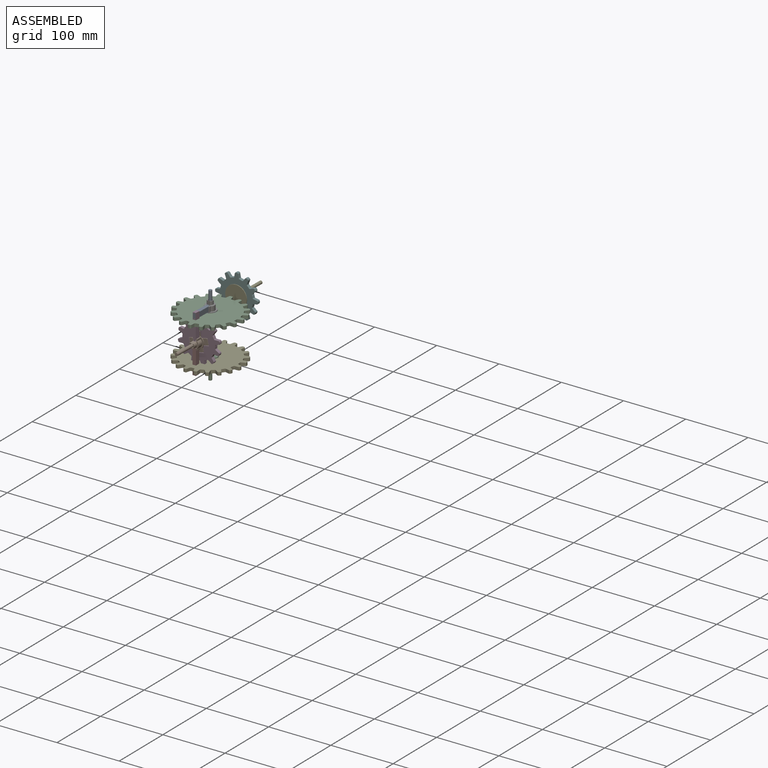
[diagram: assembled view]
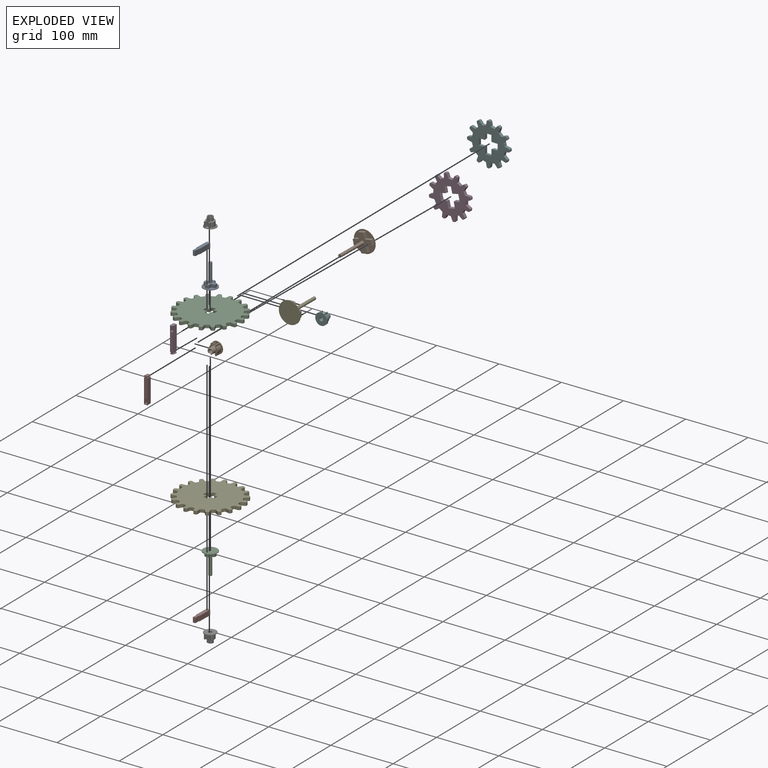
[diagram: exploded view]
GUIDED TOUR — MATED ASSEMBLY (Onshape document ef7a5acd05406b208c71d4bb, AutoMate assembly ef7a5acd05406b208c71d4bb_c376471674a683f2a3c6f9dc_a261df953283f007be04f76c_default)

This assembly has 16 components, labeled P0..P15 below (a component is one placed occurrence of a part; the same part can appear more than once), held together by 12 mates. A mate is a constraint between two components; its type names the relative motion it leaves free:
  FASTENED — locks the two components together rigidly (no relative motion),
  REVOLUTE — leaves rotation about the listed axis free (a hinge).
Axis/direction vectors are unit vectors and 'through' points are millimeter coordinates, both in the assembly's world frame.

MATES
  1. REVOLUTE "Main Gear 2": P12 <-> P13, axis (-0.017, -1.000, 0.000) through (-6.67, 27.48, 24.51) mm
  2. REVOLUTE "Secondary Gear 1": P6 <-> P0, axis (0.000, 0.000, -1.000) through (-9.37, -34.76, 25.52) mm
  3. FASTENED "Fastened 6": P14 <-> P7, direction (0.000, 0.000, -1.000) through (-9.46, -38.68, -47.33) mm
  4. REVOLUTE "Secondary Gear 2": P14 <-> P10, axis (0.000, 0.000, 1.000) through (-9.37, -34.76, -46.33) mm
  5. FASTENED "Fastened 2": P0 <-> P2, direction (0.000, 0.000, 1.000) through (-9.37, -34.76, 24.92) mm
  6. FASTENED "Fastened 1": P12 <-> P5, direction (0.017, 1.000, 0.000) through (-6.68, 26.48, 24.51) mm
  7. FASTENED "Fastened 5": P8 <-> P6, direction (0.000, 0.000, -1.000) through (-9.46, -38.68, 26.52) mm
  8. REVOLUTE "Main Gear 1": P9 <-> P1, axis (0.023, 1.000, 0.000) through (-9.80, -61.68, -10.41) mm
  9. FASTENED "Fastened 1": P9 <-> P11, direction (-0.023, -1.000, 0.000) through (-9.77, -60.68, -10.41) mm
  10. FASTENED "Fastened 4": P1 <-> P15, direction (-0.023, -1.000, 0.000) through (-9.82, -62.68, -14.33) mm
  11. FASTENED "Fastened 2": P10 <-> P4, direction (0.000, 0.000, -1.000) through (-9.37, -34.76, -45.73) mm
  12. FASTENED "Fastened 3": P1 <-> P3, direction (-0.023, -1.000, 0.000) through (-9.82, -62.68, -6.48) mm

ASSEMBLY ORDER
  1. P2 — the base component [order heuristic]
  2. P0 — core [order heuristic]
  3. P8 [order verified]
  4. P6 [order verified]
  5. P11 — core [order heuristic]
  6. P9 [order verified]
  7. P3 [order verified]
  8. P15 [order verified]
  9. P1 [order verified]
  10. P5 [order verified]
  11. P12 [order verified]
  12. P13 [order verified]
  13. P4 — core [order heuristic]
  14. P10 — core [order heuristic]
  15. P7 [order verified]
  16. P14 [order verified]
(P9, P15 verified with a relaxed clearance tolerance: the source model stores slight part interference there.)
Order-tag legend:
  [order verified] — this step's position reverses a verified removal order: the component was checked to insert without passing through the ones already placed.
  [order heuristic] — the first 5 components form the assembly's core: parts whose collision-free extraction could not be verified, listed in mate-graph order.

Of the 16 components, 2 carry the full construction recipe — the FeatureScript program that regenerates the part's solid from scratch; the rest are supplied as boundary geometry only.
Because this assembly has more than 12 components, the tour below covers the 12 most significant ones individually (every recipe-attached component first, then the largest by part volume), in assembly order; the remaining 4 are summarized together in a grouped section at the end.
Each toured component is shown spotlighted twice — in the assembled view, then in the exploded view, where a leader line traces a displaced component back to its assembled socket (saturated green if recipe-attached, orange if geometry-only; every other component desaturated gray) — followed by its recipe or geometry summary and the mates that hold it.
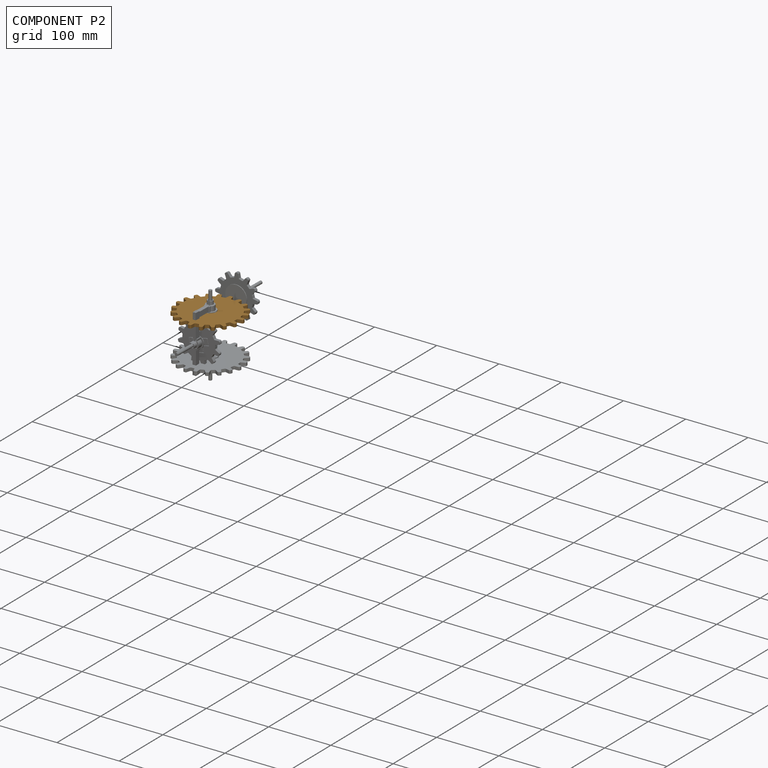
[diagram: component P2 — assembled]
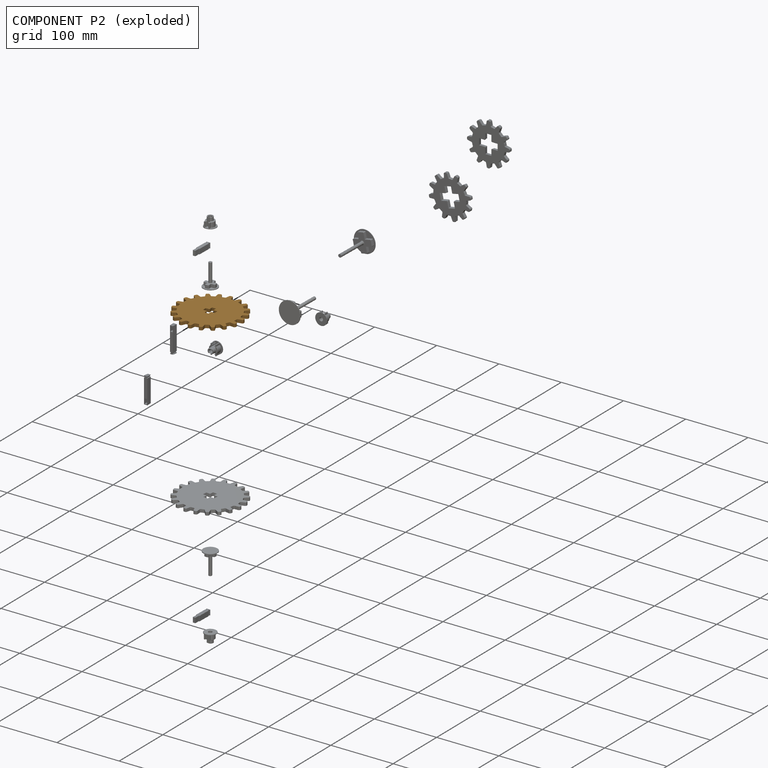
[diagram: component P2 — exploded]
COMPONENT P2 — geometry summary (no construction recipe available for this part):
  bounding box: 104.9 x 104.9 x 5.0 mm
  B-rep topology: 1 solid, 178 faces, 1056 edges
  volume: 35250 mm^3 (64% of its bounding box)
  symmetry: 2-fold rotationally symmetric about the x axis; 2-fold rotationally symmetric about the y axis; 4-fold rotationally symmetric about the z axis; mirror-symmetric across its x mid-plane, y mid-plane, z mid-plane
Held by: FASTENED mate "Fastened 2" to P0.
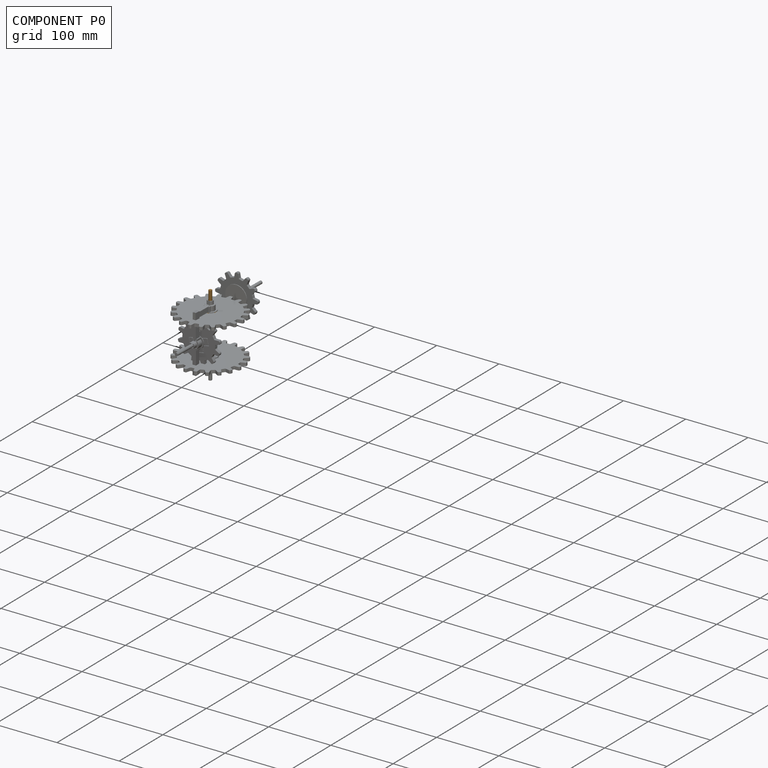
[diagram: component P0 — assembled]
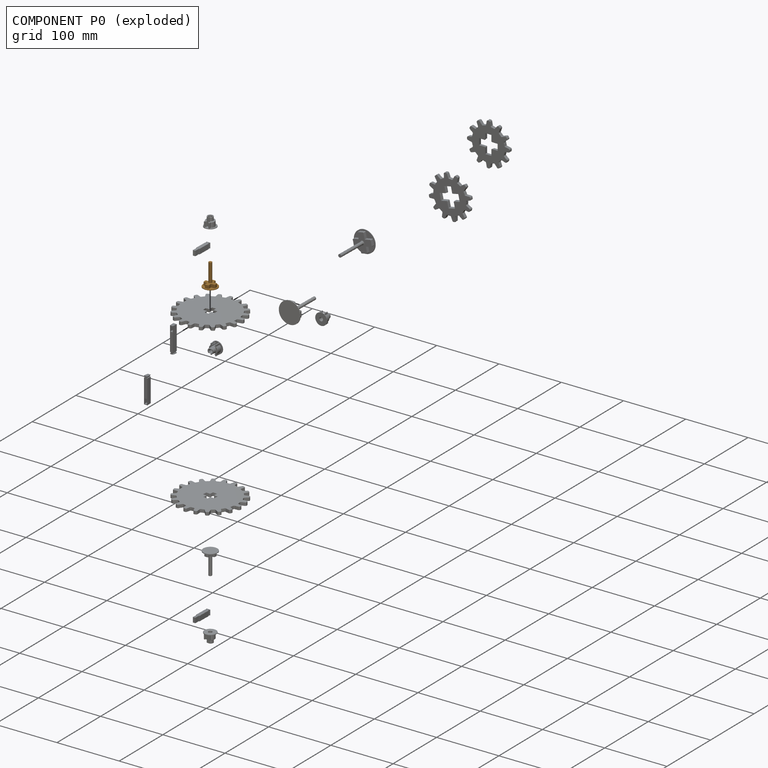
[diagram: component P0 — exploded]
COMPONENT P0 — geometry summary (no construction recipe available for this part):
  bounding box: 36.1 x 23.0 x 23.0 mm
  B-rep topology: 1 solid, 27 faces, 138 edges
  volume: 1915 mm^3 (10% of its bounding box)
  symmetry: 4-fold rotationally symmetric about the y axis; mirror-symmetric across its x mid-plane, z mid-plane
Held by: REVOLUTE mate "Secondary Gear 1" to P6; FASTENED mate "Fastened 2" to P2.
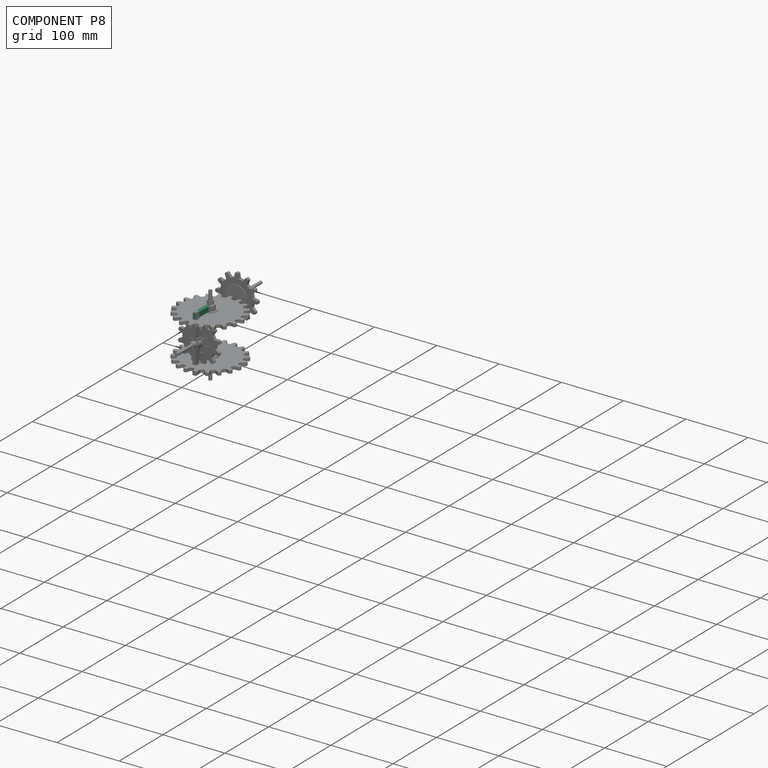
[diagram: component P8 — assembled]
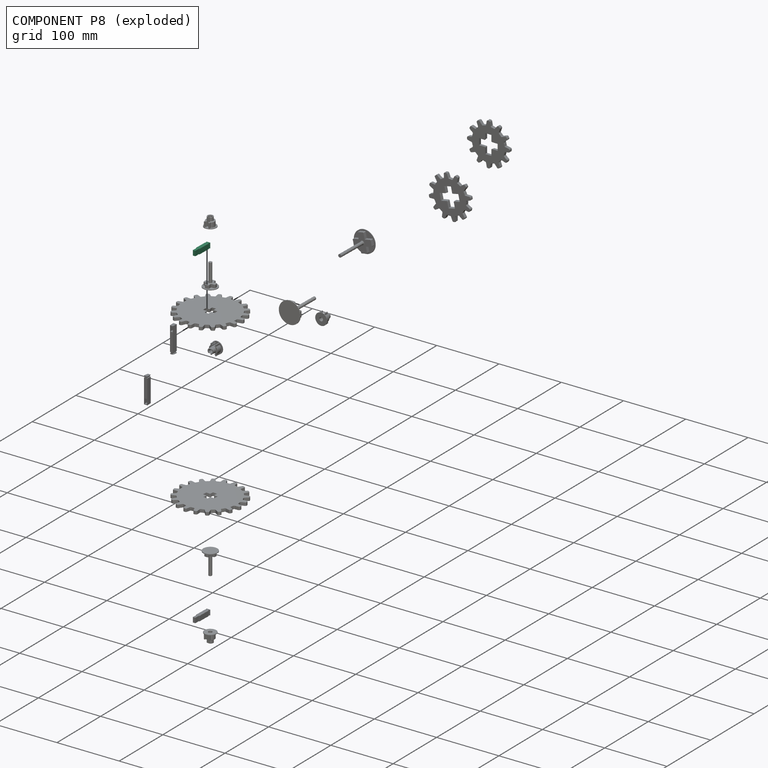
[diagram: component P8 — exploded]
COMPONENT P8 — same part as P7 (CADFS 00689722); its construction recipe is shown at P7.
Held by: FASTENED mate "Fastened 5" to P6.
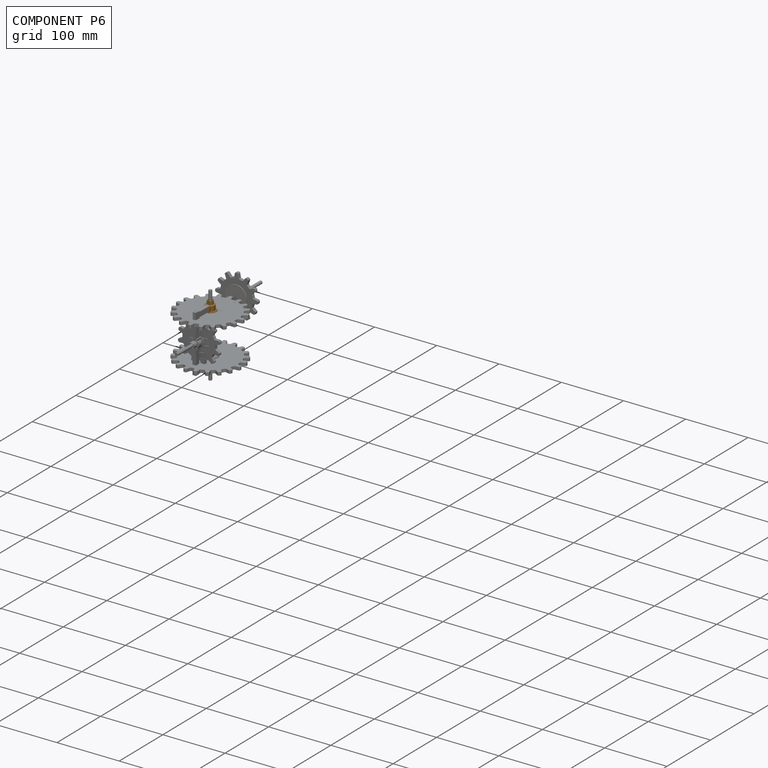
[diagram: component P6 — assembled]
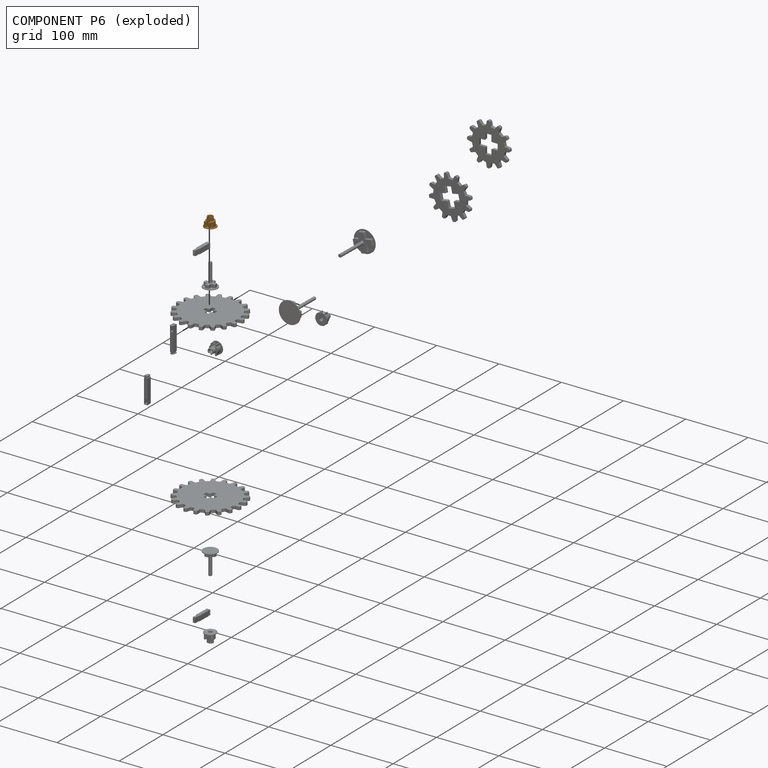
[diagram: component P6 — exploded]
COMPONENT P6 — geometry summary (no construction recipe available for this part):
  bounding box: 19.2 x 19.2 x 15.0 mm
  B-rep topology: 1 solid, 66 faces, 324 edges
  volume: 1471 mm^3 (27% of its bounding box)
  symmetry: mirror-symmetric across its y mid-plane
Held by: REVOLUTE mate "Secondary Gear 1" to P0; FASTENED mate "Fastened 5" to P8.
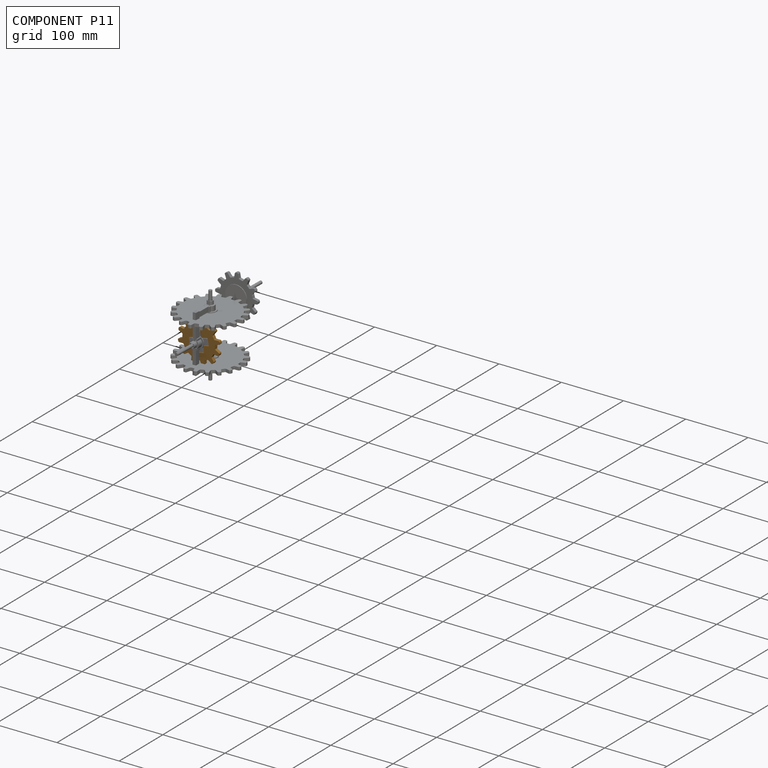
[diagram: component P11 — assembled]
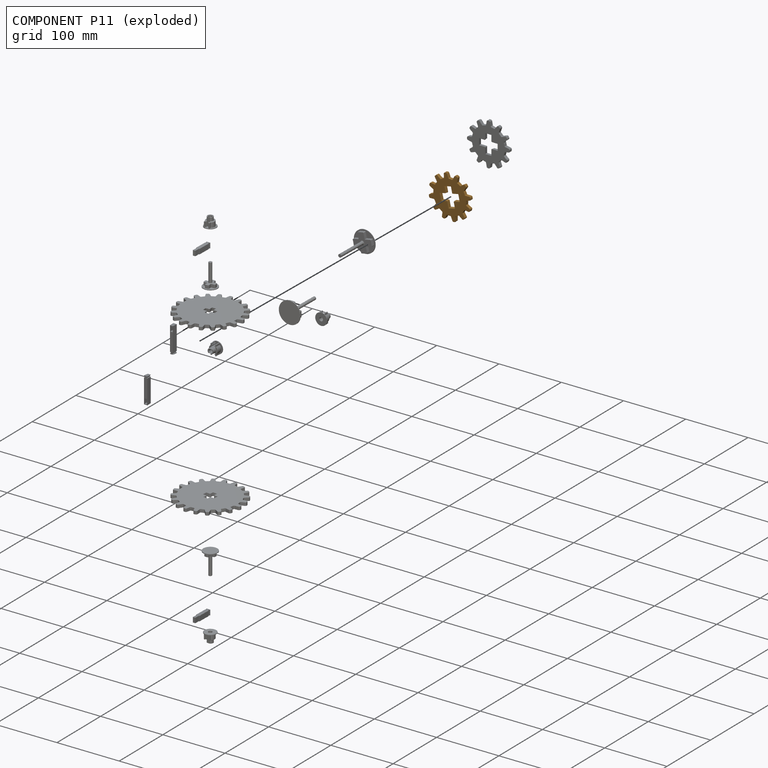
[diagram: component P11 — exploded]
COMPONENT P11 — geometry summary (no construction recipe available for this part):
  bounding box: 69.1 x 69.1 x 5.0 mm
  B-rep topology: 1 solid, 114 faces, 672 edges
  volume: 11443 mm^3 (48% of its bounding box)
  symmetry: 2-fold rotationally symmetric about the x axis; 2-fold rotationally symmetric about the y axis; 4-fold rotationally symmetric about the z axis; mirror-symmetric across its x mid-plane, y mid-plane, z mid-plane
Held by: FASTENED mate "Fastened 1" to P9.
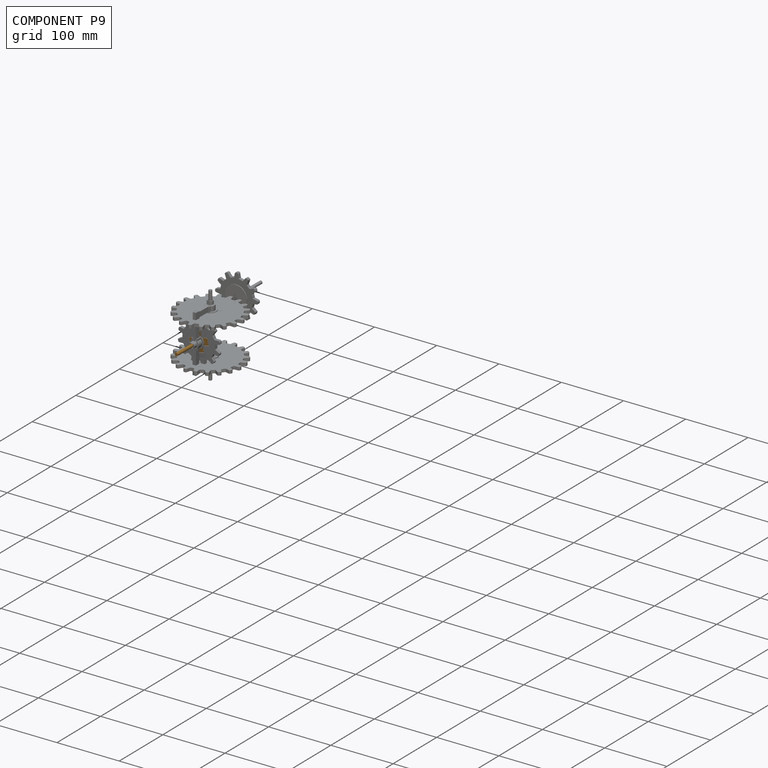
[diagram: component P9 — assembled]
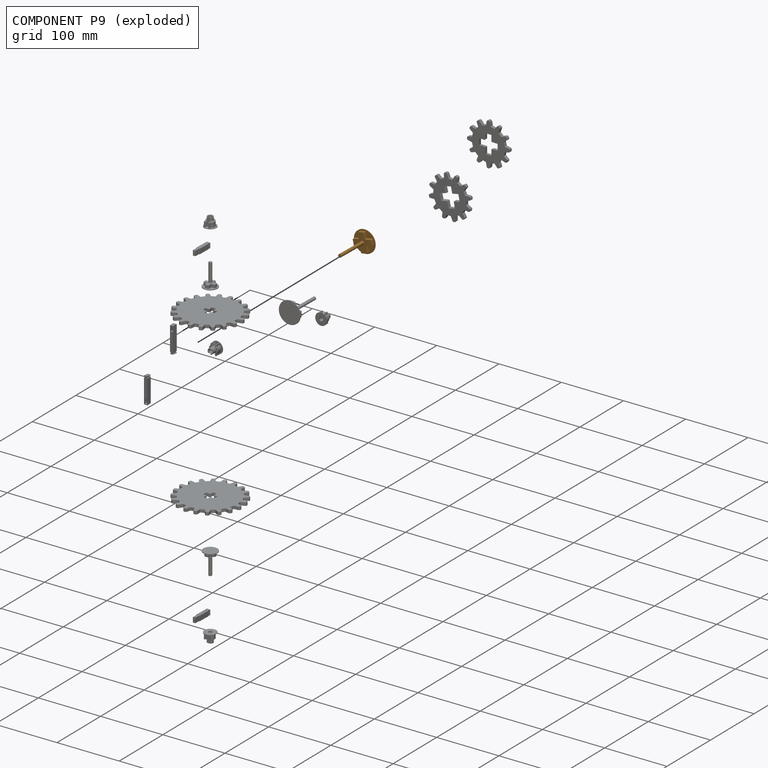
[diagram: component P9 — exploded]
COMPONENT P9 — geometry summary (no construction recipe available for this part):
  bounding box: 56.1 x 35.0 x 35.0 mm
  B-rep topology: 1 solid, 27 faces, 138 edges
  volume: 4489 mm^3 (7% of its bounding box)
  symmetry: 4-fold rotationally symmetric about the y axis; mirror-symmetric across its x mid-plane, z mid-plane
Held by: REVOLUTE mate "Main Gear 1" to P1; FASTENED mate "Fastened 1" to P11.
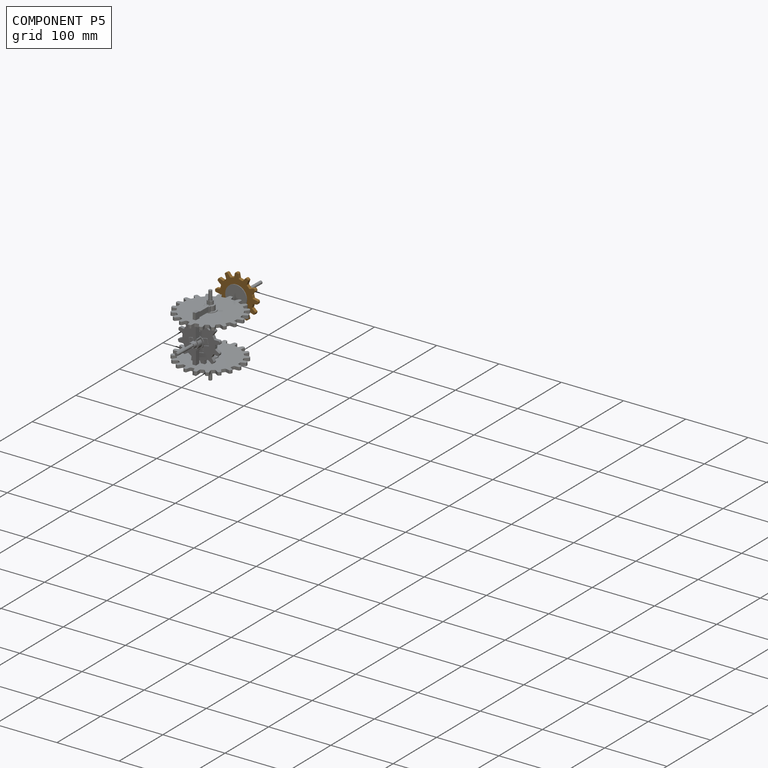
[diagram: component P5 — assembled]
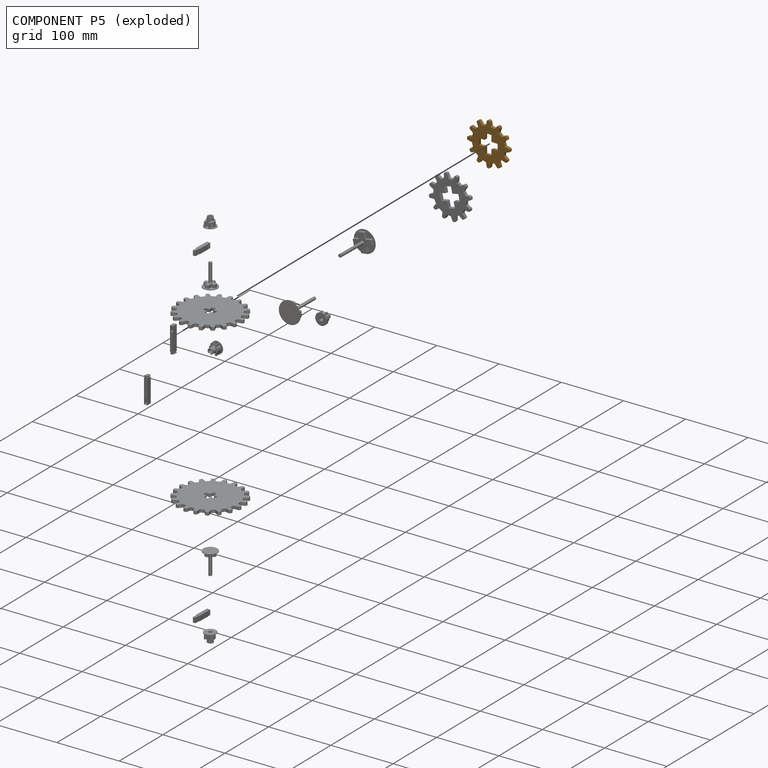
[diagram: component P5 — exploded]
COMPONENT P5 — geometry summary (no construction recipe available for this part):
  bounding box: 69.1 x 69.1 x 5.0 mm
  B-rep topology: 1 solid, 114 faces, 672 edges
  volume: 11443 mm^3 (48% of its bounding box)
  symmetry: 2-fold rotationally symmetric about the x axis; 2-fold rotationally symmetric about the y axis; 4-fold rotationally symmetric about the z axis; mirror-symmetric across its x mid-plane, y mid-plane, z mid-plane
Held by: FASTENED mate "Fastened 1" to P12.
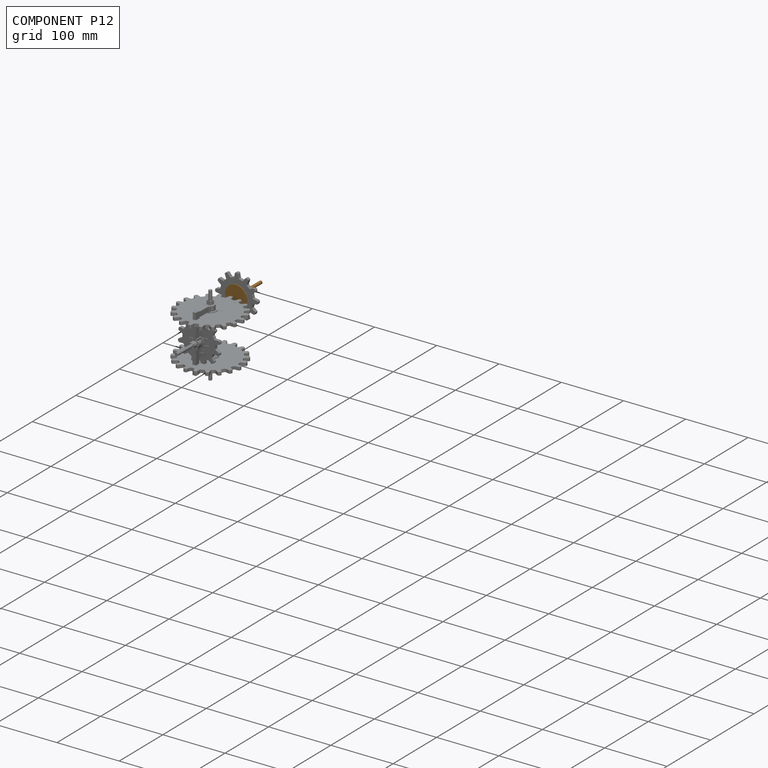
[diagram: component P12 — assembled]
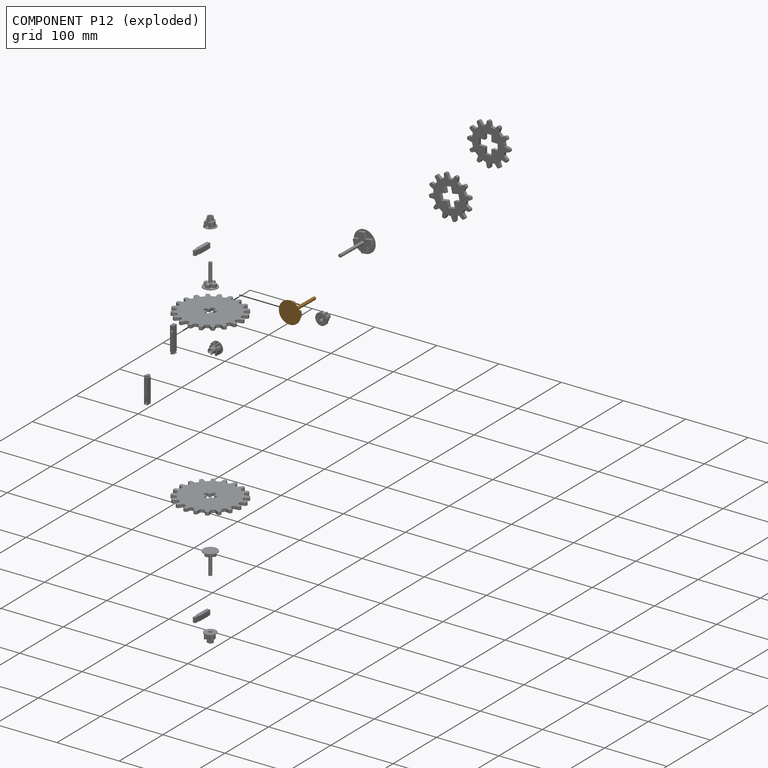
[diagram: component P12 — exploded]
COMPONENT P12 — geometry summary (no construction recipe available for this part):
  bounding box: 56.1 x 35.0 x 35.0 mm
  B-rep topology: 1 solid, 27 faces, 138 edges
  volume: 4489 mm^3 (7% of its bounding box)
  symmetry: 4-fold rotationally symmetric about the y axis; mirror-symmetric across its x mid-plane, z mid-plane
Held by: REVOLUTE mate "Main Gear 2" to P13; FASTENED mate "Fastened 1" to P5.
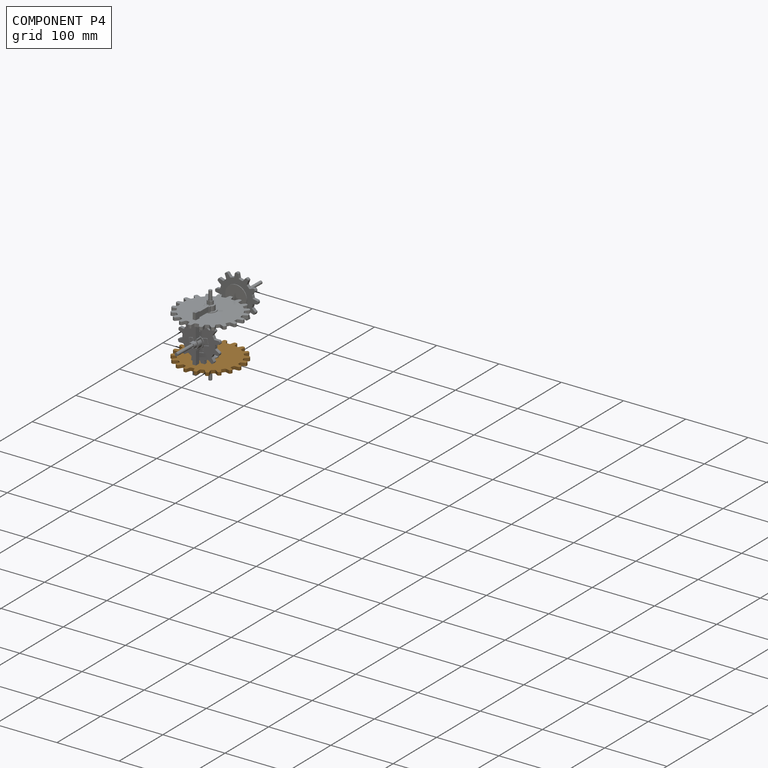
[diagram: component P4 — assembled]
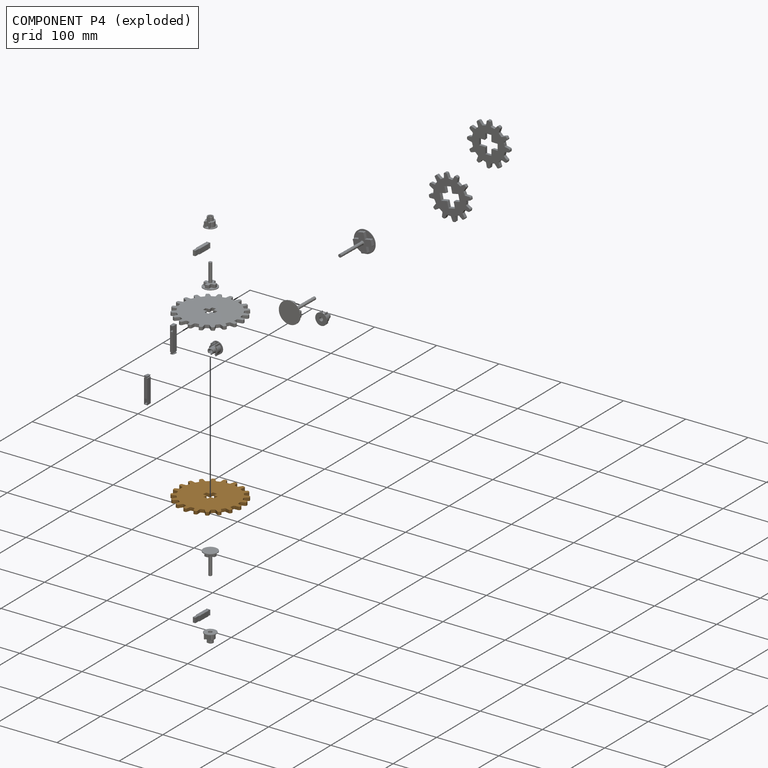
[diagram: component P4 — exploded]
COMPONENT P4 — geometry summary (no construction recipe available for this part):
  bounding box: 104.9 x 104.9 x 5.0 mm
  B-rep topology: 1 solid, 178 faces, 1056 edges
  volume: 35250 mm^3 (64% of its bounding box)
  symmetry: 2-fold rotationally symmetric about the x axis; 2-fold rotationally symmetric about the y axis; 4-fold rotationally symmetric about the z axis; mirror-symmetric across its x mid-plane, y mid-plane, z mid-plane
Held by: FASTENED mate "Fastened 2" to P10.
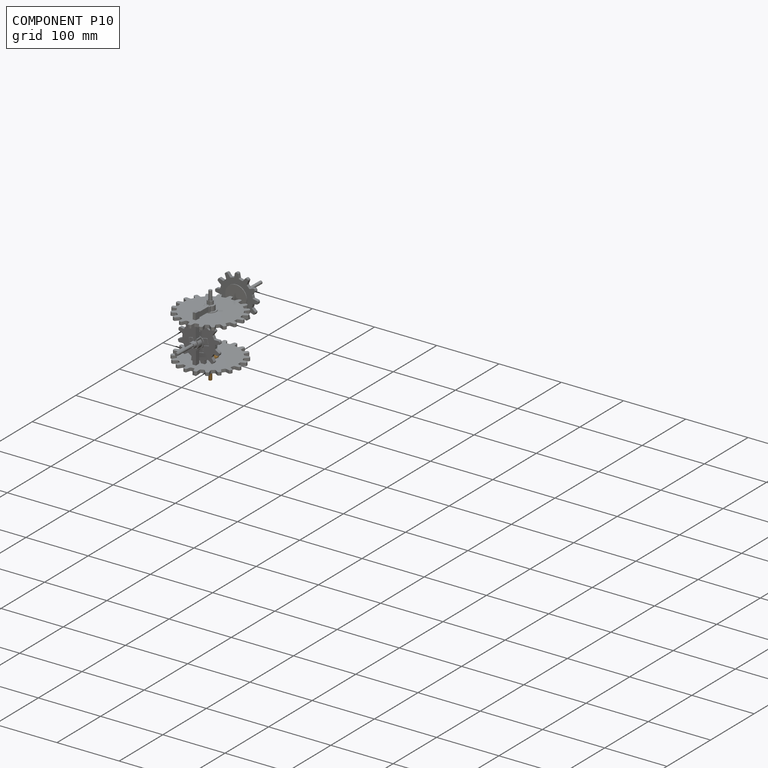
[diagram: component P10 — assembled]
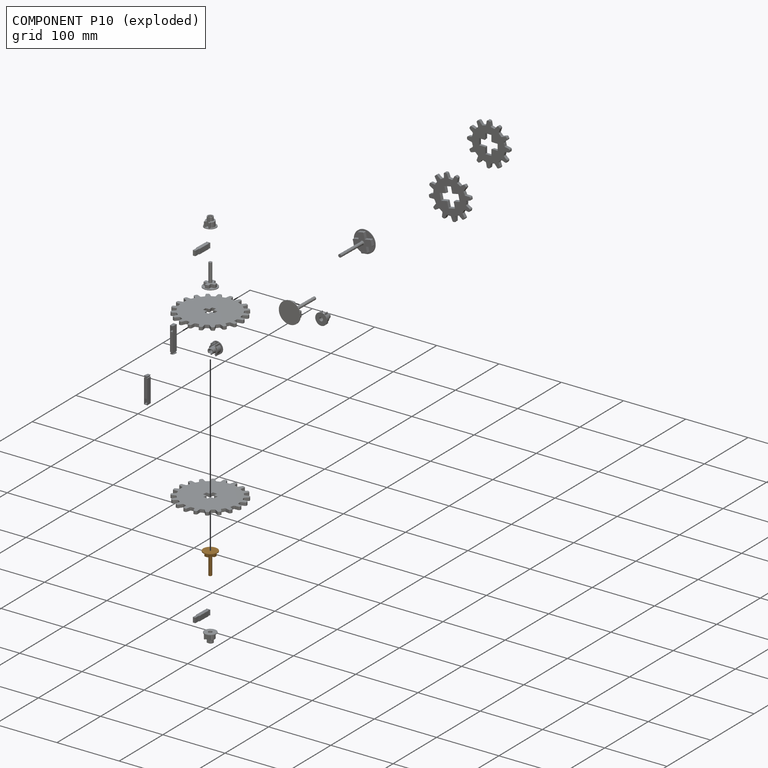
[diagram: component P10 — exploded]
COMPONENT P10 — geometry summary (no construction recipe available for this part):
  bounding box: 36.1 x 23.0 x 23.0 mm
  B-rep topology: 1 solid, 27 faces, 138 edges
  volume: 1915 mm^3 (10% of its bounding box)
  symmetry: 4-fold rotationally symmetric about the y axis; mirror-symmetric across its x mid-plane, z mid-plane
Held by: REVOLUTE mate "Secondary Gear 2" to P14; FASTENED mate "Fastened 2" to P4.
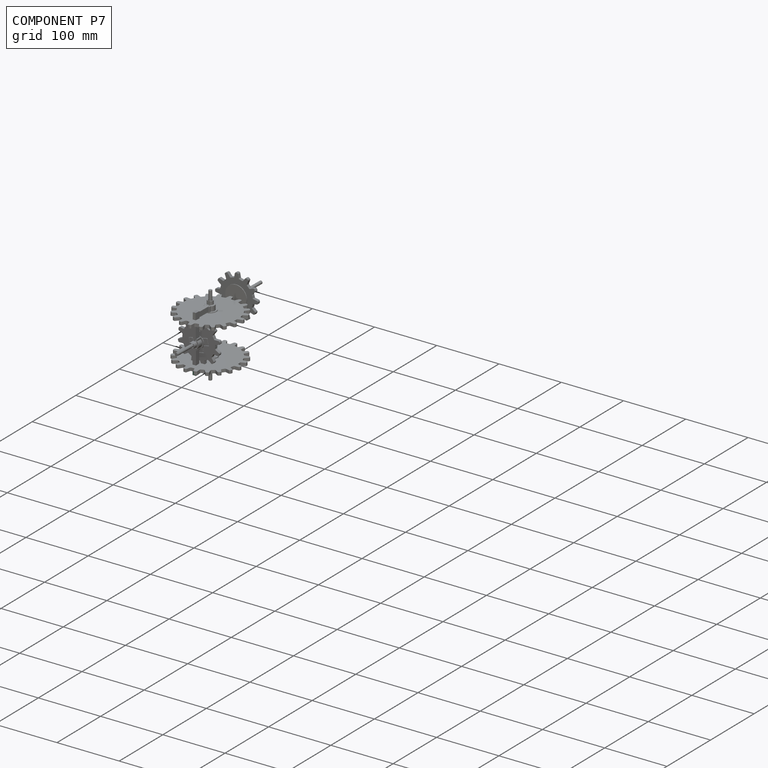
[diagram: component P7 — assembled]
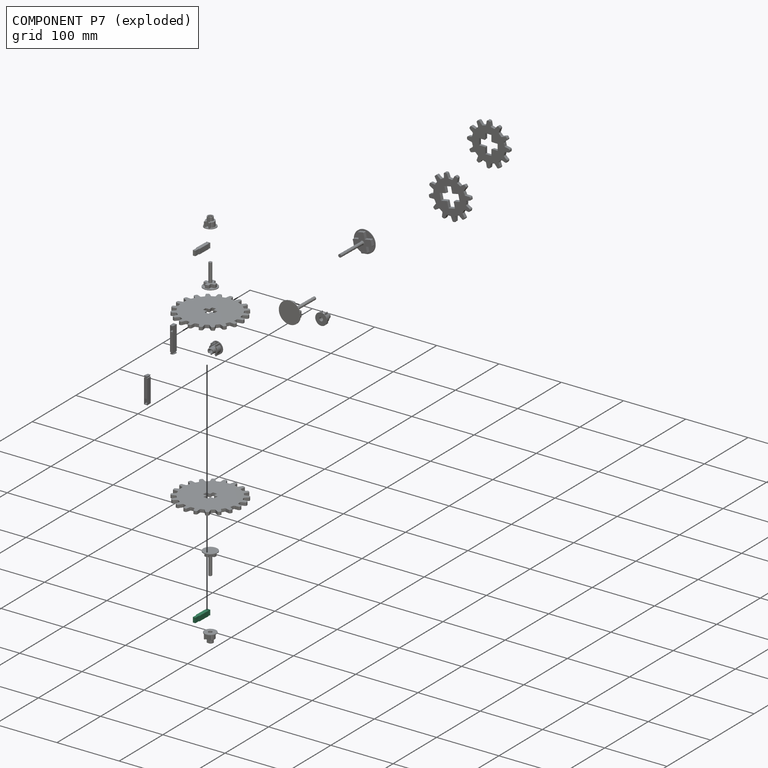
[diagram: component P7 — exploded]
COMPONENT P7 — recipe-attached (CADFS 00689722, mesh-verified: the recipe's output STEP matches this component's geometry to below the mesh-comparison resolution (tessellation chordal tolerance ~0.0502 mm)).
Held by: FASTENED mate "Fastened 6" to P14.
Construction recipe (FeatureScript — the CAD program that rebuilds this solid; sketch coordinates are in the units given by the * unit suffixes, e.g. mm):

FeatureScript 1511;
import(path : "onshape/std/geometry.fs", version : "1511.0");
import(path : "onshape/std/common.fs", version : "1511.0");
const mm = millimeter;
const VERTEX = EntityType.VERTEX;
const EDGE = EntityType.EDGE;
const FACE = EntityType.FACE;
const BODY = EntityType.BODY;
function v(x, y){return vector(x, y);}
function OD(order){return orderDisambiguation(order);}
function OSD(set){return originalSetDisambiguation(set);}
function TD(topology){return topologyDisambiguation(topology);}
function TDD(query){return trueDependencyDisambiguation(query);}
function sQuery(a, b, c) {return sketchEntityQuery(a, b, c);}

annotation { "Feature Type Name" : "Feature", "Feature Type Description" : "" }
export const myFeature = defineFeature(function(context is Context, id is Id, definition is map)
    precondition{}
    {
        {
            var Q0;
            Q0=qCreatedBy(makeId("Top.planeOp"),FACE);
            var sketch = newSketch(context, id + "F0", { "sketchPlane" : qUnion([Q0])});
            skLineSegment(sketch, "E0.bottom", {"start": v(-45.17, 5.66) * mm, "end": v(-16.17, 5.66) * mm});
            skLineSegment(sketch, "E0.top", {"start": v(-45.17, -0.14) * mm, "end": v(-16.17, -0.14) * mm});
            skLineSegment(sketch, "E0.right", {"start": v(-16.17, 5.66) * mm, "end": v(-16.17, -0.14) * mm});
            skLineSegment(sketch, "E1", {"start": v(-45.17, 5.66) * mm, "end": v(-45.17, 4.16) * mm});
            skLineSegment(sketch, "E2", {"start": v(-45.17, 4.16) * mm, "end": v(-46.77, 4.16) * mm});
            skLineSegment(sketch, "E3", {"start": v(-46.77, 4.16) * mm, "end": v(-46.77, 5.66) * mm});
            skLineSegment(sketch, "E4", {"start": v(-43.67, 2.76) * mm, "end": v(-52.24, 2.76) * mm, "construction": true});
            skLineSegment(sketch, "E5.MirrorCS", {"start": v(-46.77, -0.14) * mm, "end": v(-48.17, -0.14) * mm});
            skLineSegment(sketch, "E6.MirrorCS", {"start": v(-46.77, 1.36) * mm, "end": v(-46.77, -0.14) * mm});
            skLineSegment(sketch, "E7.MirrorCS", {"start": v(-45.17, 1.36) * mm, "end": v(-46.77, 1.36) * mm});
            skLineSegment(sketch, "E8.MirrorCS", {"start": v(-45.17, -0.14) * mm, "end": v(-45.17, 1.36) * mm});
            skLineSegment(sketch, "E9", {"start": v(-48.17, 5.66) * mm, "end": v(-48.17, -0.14) * mm});
            skLineSegment(sketch, "E10", {"start": v(-48.17, 5.66) * mm, "end": v(-46.77, 5.66) * mm});
            skSolve(sketch);
        }
        {
            var Q0;
            Q0=makeQuery(id+"F0.imprint","IMPRINT",FACE,{"disambiguationData":[TD([[makeQuery(id+"F0.imprint","IMPRINT",EDGE,{"derivedFrom":sQuery(id+"F0.wireOp",EDGE,"E0.bottom")}),-1.0]])]});
            var Q1;
            Q1=makeQuery(id+"F0.imprint","IMPRINT",FACE,{"disambiguationData":[TD([[makeQuery(id+"F0.imprint","IMPRINT",EDGE,{"derivedFrom":sQuery(id+"F0.wireOp",EDGE,"E0.right")}),1.0]])]});
            extrude(context, id + "F1", {"entities" : qUnion([Q0, Q1]), "depth" : 8 * mm, "offsetDistance" : 25 * mm});
        }
        {
            var Q0;
            Q0=makeQuery(id+"F1.opExtrude","SWEPT_FACE",FACE,{"disambiguationData":[OSD([sQuery(id+"F0.wireOp",EDGE,"E0.right")])]});
            var sketch = newSketch(context, id + "F2", { "sketchPlane" : qUnion([Q0])});
            skLineSegment(sketch, "E11.left", {"start": v(2.76, 8) * mm, "end": v(2.76, 0) * mm, "construction": true});
            skLineSegment(sketch, "E12", {"start": v(2.76, 0.05) * mm, "end": v(0.8, 0.05) * mm});
            skLineSegment(sketch, "E13", {"start": v(-0.14, 4) * mm, "end": v(5.66, 4) * mm, "construction": true});
            skLineSegment(sketch, "E14", {"start": v(0.8, 0.05) * mm, "end": v(0.8, 4) * mm});
            skLineSegment(sketch, "E15.MirrorCS", {"start": v(0.8, 7.95) * mm, "end": v(0.8, 4) * mm});
            skLineSegment(sketch, "E16.MirrorCS", {"start": v(2.76, 7.95) * mm, "end": v(0.8, 7.95) * mm});
            skLineSegment(sketch, "E17.MirrorCS", {"start": v(4.7, 0.05) * mm, "end": v(4.7, 4) * mm});
            skLineSegment(sketch, "E18.MirrorCS", {"start": v(2.76, 0.05) * mm, "end": v(4.7, 0.05) * mm});
            skLineSegment(sketch, "E19.MirrorCS", {"start": v(4.7, 7.95) * mm, "end": v(4.7, 4) * mm});
            skLineSegment(sketch, "E20.MirrorCS", {"start": v(2.76, 7.95) * mm, "end": v(4.7, 7.95) * mm});
            skSolve(sketch);
        }
        {
            var Q0;
            {var subQ0=sQuery(id+"F2.wireOp",EDGE,"E11.left");Q0=makeQuery(id+"F2.imprint","IMPRINT",FACE,{"disambiguationData":[TD([[makeQuery(id+"F2.imprint","IMPRINT",EDGE,{"derivedFrom":subQ0}),-1.0]])]});}
            var Q1;
            {var subQ0=sQuery(id+"F2.wireOp",EDGE,"E11.right");Q1=makeQuery(id+"F2.imprint","IMPRINT",FACE,{"disambiguationData":[TD([[makeQuery(id+"F2.imprint","IMPRINT",EDGE,{"derivedFrom":subQ0}),1.0]])]});}
            var Q2;
            Q2=makeQuery(id+"F2.imprint","IMPRINT",FACE,{"disambiguationData":[TD([[makeQuery(id+"F2.imprint","IMPRINT",EDGE,{"derivedFrom":sQuery(id+"F2.wireOp",EDGE,"E12")}),1.0]])]});
            extrude(context, id + "F3", {"entities" : qUnion([Q0, Q1, Q2]), "operationType" : NewBodyOperationType.REMOVE, "oppositeDirection" : true, "depth" : 8 * mm, "offsetDistance" : 25 * mm});
        }
        {
            var Q0;
            Q0=makeQuery(id+"F1.opExtrude","SWEPT_EDGE",EDGE,{"disambiguationData":[OSD([sQuery(id+"F0.wireOp",EDGE,"E5.MirrorCS"),sQuery(id+"F0.wireOp",EDGE,"E6.MirrorCS")])]});
            var Q1;
            Q1=makeQuery(id+"F1.opExtrude","SWEPT_EDGE",EDGE,{"disambiguationData":[OSD([sQuery(id+"F0.wireOp",EDGE,"E6.MirrorCS"),sQuery(id+"F0.wireOp",EDGE,"E7.MirrorCS")])]});
            var Q2;
            Q2=makeQuery(id+"F1.opExtrude","SWEPT_EDGE",EDGE,{"disambiguationData":[OSD([sQuery(id+"F0.wireOp",EDGE,"E2"),sQuery(id+"F0.wireOp",EDGE,"E3")])]});
            var Q3;
            Q3=makeQuery(id+"F1.opExtrude","SWEPT_EDGE",EDGE,{"disambiguationData":[OSD([sQuery(id+"F0.wireOp",EDGE,"E3"),sQuery(id+"F0.wireOp",EDGE,"E10")])]});
            var Q4;
            Q4=makeQuery(id+"F1.opExtrude","SWEPT_EDGE",EDGE,{"disambiguationData":[OSD([sQuery(id+"F0.wireOp",EDGE,"E9"),sQuery(id+"F0.wireOp",EDGE,"E10")])]});
            var Q5;
            Q5=makeQuery(id+"F1.opExtrude","SWEPT_EDGE",EDGE,{"disambiguationData":[OSD([sQuery(id+"F0.wireOp",EDGE,"E5.MirrorCS"),sQuery(id+"F0.wireOp",EDGE,"E9")])]});
            var Q6;
            Q6=makeQuery(id+"F1.opExtrude","SWEPT_EDGE",EDGE,{"disambiguationData":[OSD([sQuery(id+"F0.wireOp",EDGE,"E0.top"),sQuery(id+"F0.wireOp",EDGE,"E8.MirrorCS")])]});
            var Q7;
            Q7=makeQuery(id+"F1.opExtrude","SWEPT_EDGE",EDGE,{"disambiguationData":[OSD([sQuery(id+"F0.wireOp",EDGE,"E0.bottom"),sQuery(id+"F0.wireOp",EDGE,"E1")])]});
            var Q8;
            Q8=makeQuery(id+"F1.opExtrude","SWEPT_EDGE",EDGE,{"disambiguationData":[OSD([sQuery(id+"F0.wireOp",EDGE,"E1"),sQuery(id+"F0.wireOp",EDGE,"E2")])]});
            var Q9;
            Q9=makeQuery(id+"F1.opExtrude","SWEPT_EDGE",EDGE,{"disambiguationData":[OSD([sQuery(id+"F0.wireOp",EDGE,"E7.MirrorCS"),sQuery(id+"F0.wireOp",EDGE,"E8.MirrorCS")])]});
            fillet(context, id + "F4", {"entities" : qUnion([Q0, Q1, Q2, Q3, Q4, Q5, Q6, Q7, Q8, Q9]), "radius" : .1 * mm, "tangentPropagation" : true, "allowEdgeOverflow" : false});
        }
    });
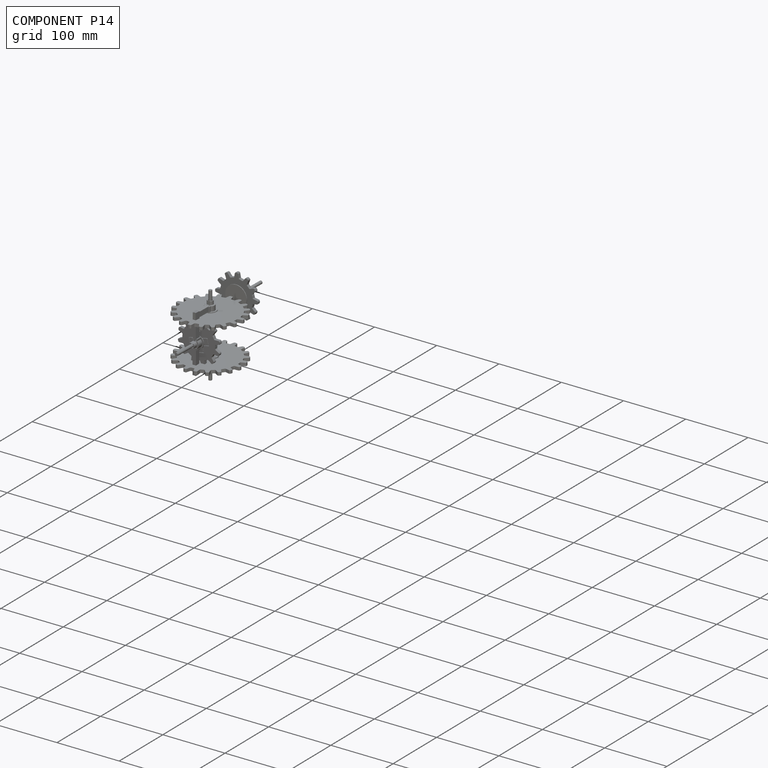
[diagram: component P14 — assembled]
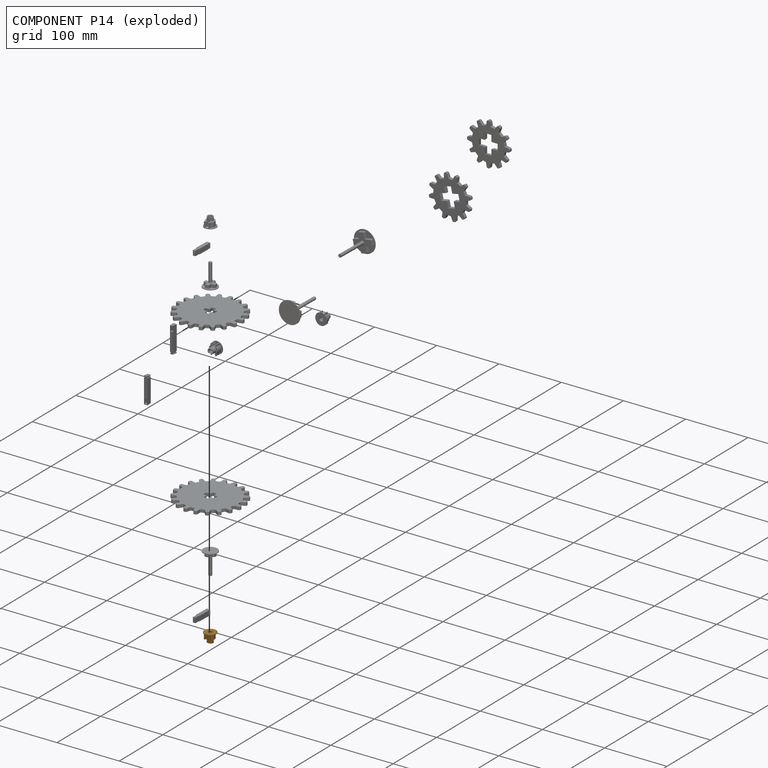
[diagram: component P14 — exploded]
COMPONENT P14 — geometry summary (no construction recipe available for this part):
  bounding box: 19.2 x 19.2 x 15.0 mm
  B-rep topology: 1 solid, 66 faces, 324 edges
  volume: 1471 mm^3 (27% of its bounding box)
  symmetry: mirror-symmetric across its y mid-plane
Held by: FASTENED mate "Fastened 6" to P7; REVOLUTE mate "Secondary Gear 2" to P10.
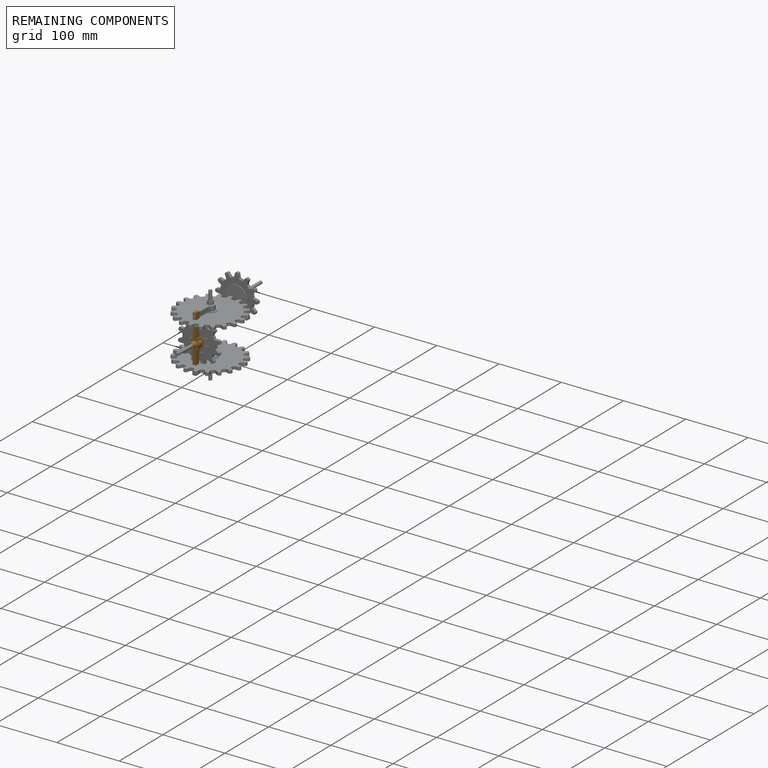
[diagram: remaining components — assembled]
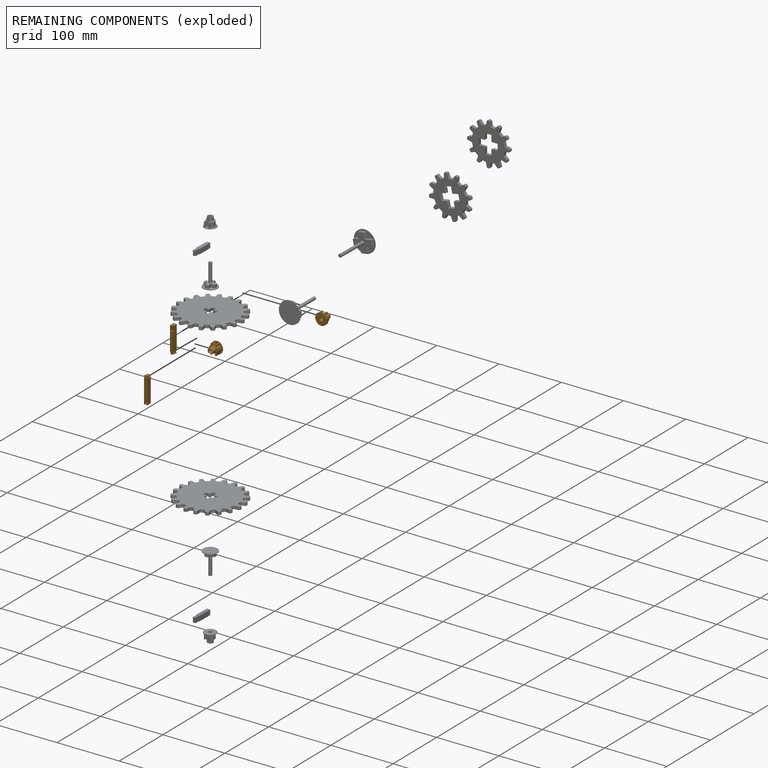
[diagram: remaining components — exploded]
REMAINING COMPONENTS (grouped) — the 4 components below fall outside the per-component tour by the significance rule stated above; both spotlight views highlight the whole group.
  P3: bounding box 42.0 x 8.0 x 5.6 mm, volume 1428 mm^3. Held by: FASTENED mate "Fastened 3" to P1.
  P15: bounding box 42.0 x 8.0 x 5.6 mm, volume 1428 mm^3. Held by: FASTENED mate "Fastened 4" to P1.
  P1: bounding box 19.4 x 19.4 x 15.2 mm, volume 1316 mm^3. Held by: REVOLUTE mate "Main Gear 1" to P9; FASTENED mate "Fastened 4" to P15; FASTENED mate "Fastened 3" to P3.
  P13: bounding box 19.4 x 19.4 x 15.2 mm, volume 1316 mm^3. Held by: REVOLUTE mate "Main Gear 2" to P12.
PROVENANCE & LICENSES
Assembly (occurrences, transforms, mates, per-part STEP geometry): AutoMate dataset, Zenodo record 7776208, CC0.
Construction recipes: CADFS (HuggingFace VladPyatov/CADFS, CC-BY-4.0, layered over the ABC dataset), FeatureScript reconstruction programs keyed by ABC model id.
Join: ABC meta listings map ABC model id -> Onshape documentId; within a shared document, parts are matched by geometric signature (bounding-box dims + volume at 0.1% relative tolerance, exact B-rep face/solid counts).
Verification: 2 of this assembly's 16 components carry a recipe attachment, and every attachment is mesh-verified: the CADFS STEP and the AutoMate member STEP were compared as meshes in their shared local frame (symmetric sampled-point-to-mesh distance); worst across the 2 attachments: below the mesh-comparison resolution (tessellation chordal tolerance ~0.0502 mm) on a 33 mm part.
Renders: orthographic iso camera (az 35 / el 25); the floor grid conveys scale (grid pitch printed in each image; no ruler). In the exploded view each component is displaced by its stored offset vector: the offsets alone carry the explosion direction (mate normal/axis signs are not orientation cues and do not encode it), and separation distances are assigned per mate-chain, not proportionally to assembly-order depth.
